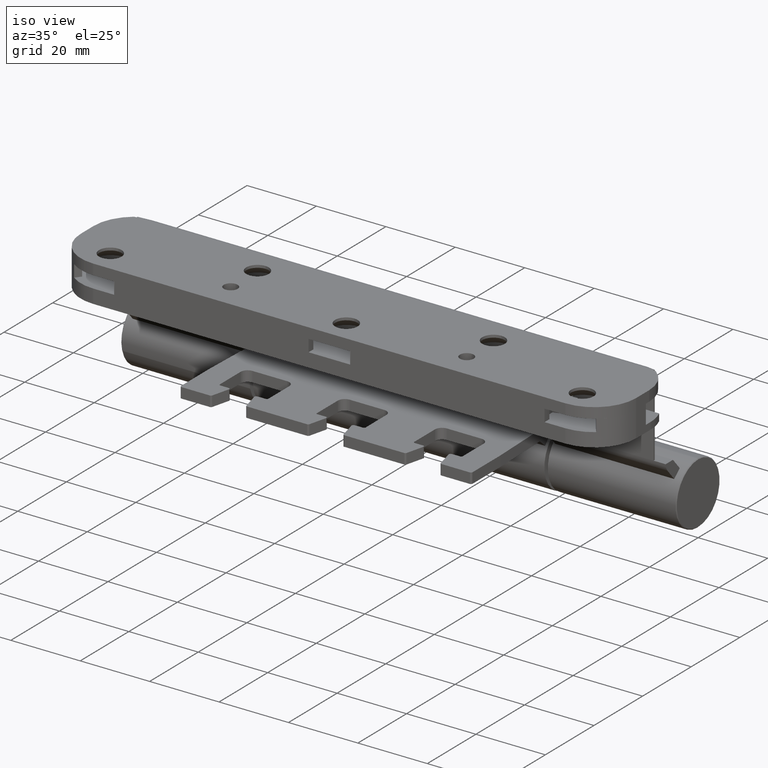
[diagram: clean part render]
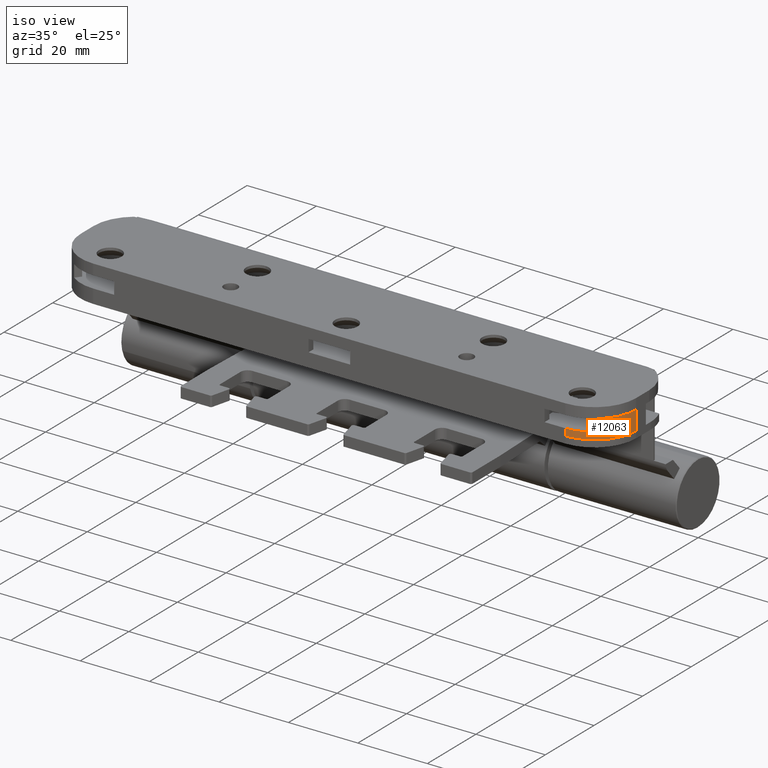
[diagram: same view with one face highlighted and labeled with its STEP entity id]
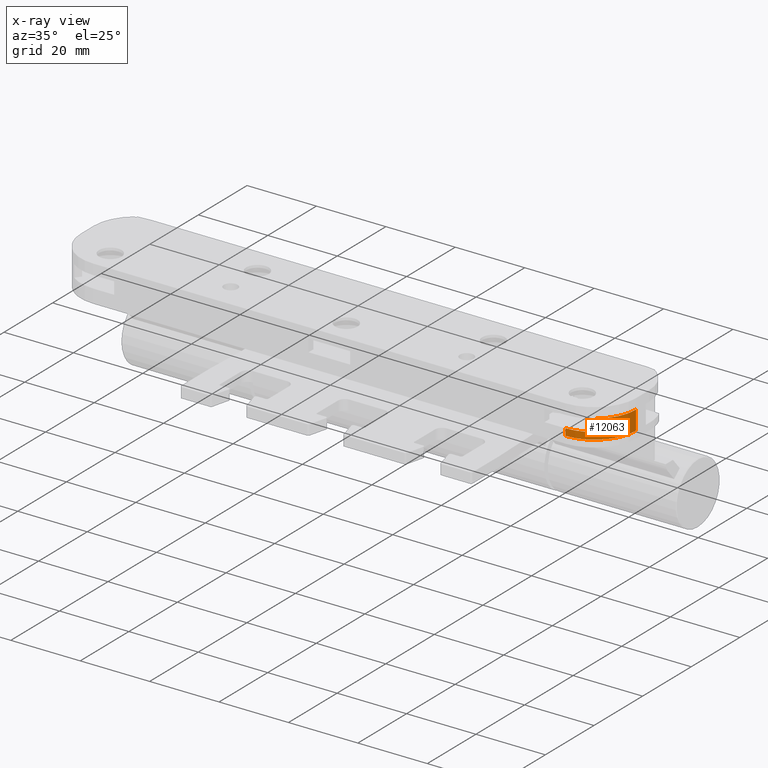
[diagram: x-ray of the same camera — body ghosted, the highlighted face saturated]
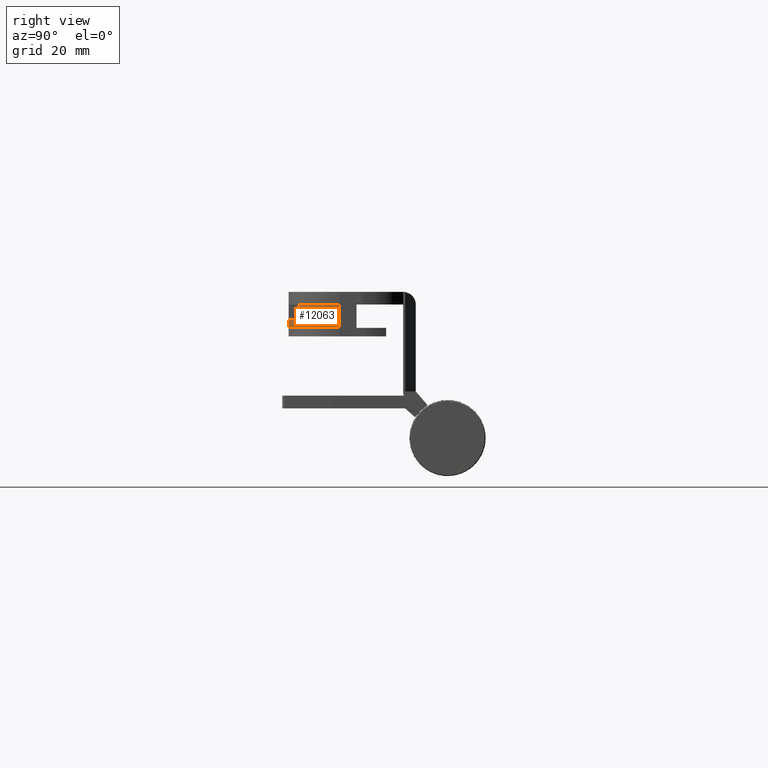
[diagram: same view with one face highlighted and labeled with its STEP entity id]
A machine part, iso view. The second image highlights one B-rep face of the part: STEP entity #12063.
The next image is the same camera in x-ray: the body ghosted, the highlighted face saturated — about 0% of this face is hidden behind the body in this view.
A second angle (right view) of the same face is appended — the face is thin or edge-on in the first view.
In plain terms, the highlighted cylindrical surface (partial cylindrical patch) has radius 12 mm, axis along (0, -0, -1).
Its self-contained STEP definition (entity closure, byte-faithful):
#56 = VECTOR ( 'NONE', #7314, 1000.000000000000000 ) ;
#201 = CARTESIAN_POINT ( 'NONE',  ( 4.000000000000007105, -68.00000000000000000, 1.999999999999922062 ) ) ;
#696 = CARTESIAN_POINT ( 'NONE',  ( 4.000000000000007105, -80.00000000000000000, 1.999999999999914957 ) ) ;
#1927 = DIRECTION ( 'NONE',  ( -1.000000000000000000, 0.000000000000000000, -2.891205793294686708E-16 ) ) ;
#2260 = AXIS2_PLACEMENT_3D ( 'NONE', #4802, #8157, #15163 ) ;
#2679 = EDGE_CURVE ( 'NONE', #15171, #10519, #4637, .T. ) ;
#3939 = EDGE_CURVE ( 'NONE', #4330, #4946, #5031, .T. ) ;
#4330 = VERTEX_POINT ( 'NONE', #11907 ) ;
#4637 = CIRCLE ( 'NONE', #7063, 11.99999999999996625 ) ;
#4802 = CARTESIAN_POINT ( 'NONE',  ( 4.000000000000007105, -68.00000000000000000, 1.999999999999922062 ) ) ;
#4946 = VERTEX_POINT ( 'NONE', #13034 ) ;
#5031 = CIRCLE ( 'NONE', #2260, 11.99999999999996625 ) ;
#5498 = CARTESIAN_POINT ( 'NONE',  ( -7.999999999999992895, -68.00000000000000000, -7.979727989493312634E-14 ) ) ;
#6358 = ORIENTED_EDGE ( 'NONE', *, *, #11897, .T. ) ;
#7063 = AXIS2_PLACEMENT_3D ( 'NONE', #7390, #19055, #8793 ) ;
#7308 = LINE ( 'NONE', #10238, #15389 ) ;
#7314 = DIRECTION ( 'NONE',  ( -2.812673165243434616E-16, -7.216449660063531318E-16, -1.000000000000000000 ) ) ;
#7390 = CARTESIAN_POINT ( 'NONE',  ( 4.000000000000014211, -68.00000000000000000, 5.499999999999911182 ) ) ;
#7804 = CARTESIAN_POINT ( 'NONE',  ( 4.000000000000007105, -80.00000000000000000, -4.510281037539698445E-14 ) ) ;
#8157 = DIRECTION ( 'NONE',  ( 2.812673165243434616E-16, 7.216449660063531318E-16, 1.000000000000000000 ) ) ;
#8479 = VERTEX_POINT ( 'NONE', #7804 ) ;
#8793 = DIRECTION ( 'NONE',  ( -1.000000000000000000, 0.000000000000000000, -2.891205793294686708E-16 ) ) ;
#8890 = DIRECTION ( 'NONE',  ( 2.812673165243434616E-16, 7.216449660063531318E-16, 1.000000000000000000 ) ) ;
#9036 = CARTESIAN_POINT ( 'NONE',  ( 4.000000000000017764, -80.00000000000000000, 5.499999999999841904 ) ) ;
#10006 = ORIENTED_EDGE ( 'NONE', *, *, #16037, .F. ) ;
#10037 = CYLINDRICAL_SURFACE ( 'NONE', #13303, 11.99999999999996625 ) ;
#10238 = CARTESIAN_POINT ( 'NONE',  ( -7.999999999999992895, -68.00000000000000000, 1.999999999999911626 ) ) ;
#10293 = EDGE_LOOP ( 'NONE', ( #10006, #12437, #6358, #19586, #14209, #13745 ) ) ;
#10519 = VERTEX_POINT ( 'NONE', #9036 ) ;
#11560 = VECTOR ( 'NONE', #13848, 1000.000000000000000 ) ;
#11897 = EDGE_CURVE ( 'NONE', #15171, #4946, #15362, .T. ) ;
#11907 = CARTESIAN_POINT ( 'NONE',  ( -7.999999999999992895, -68.00000000000000000, 1.999999999999911626 ) ) ;
#12063 = ADVANCED_FACE ( 'NONE', ( #16322 ), #10037, .T. ) ;
#12240 = CARTESIAN_POINT ( 'NONE',  ( -5.599999999999987210, -75.20000000000000284, 5.499999999999911182 ) ) ;
#12437 = ORIENTED_EDGE ( 'NONE', *, *, #2679, .F. ) ;
#12511 = CARTESIAN_POINT ( 'NONE',  ( -5.599999999999987210, -75.20000000000000284, 5.499999999999911182 ) ) ;
#12534 = EDGE_CURVE ( 'NONE', #4330, #21243, #7308, .T. ) ;
#13034 = CARTESIAN_POINT ( 'NONE',  ( -5.599999999999994316, -75.20000000000000284, 1.999999999999911626 ) ) ;
#13303 = AXIS2_PLACEMENT_3D ( 'NONE', #201, #19991, #1927 ) ;
#13310 = AXIS2_PLACEMENT_3D ( 'NONE', #17128, #8890, #15481 ) ;
#13745 = ORIENTED_EDGE ( 'NONE', *, *, #19058, .T. ) ;
#13848 = DIRECTION ( 'NONE',  ( -2.812673165243434616E-16, -7.216449660063531318E-16, -1.000000000000000000 ) ) ;
#14209 = ORIENTED_EDGE ( 'NONE', *, *, #12534, .T. ) ;
#15163 = DIRECTION ( 'NONE',  ( -1.000000000000000000, 0.000000000000000000, -2.891205793294686708E-16 ) ) ;
#15171 = VERTEX_POINT ( 'NONE', #12511 ) ;
#15362 = LINE ( 'NONE', #12240, #11560 ) ;
#15389 = VECTOR ( 'NONE', #18453, 1000.000000000000000 ) ;
#15481 = DIRECTION ( 'NONE',  ( -1.000000000000000000, 0.000000000000000000, -2.812673165243437081E-16 ) ) ;
#16037 = EDGE_CURVE ( 'NONE', #10519, #8479, #17059, .T. ) ;
#16322 = FACE_OUTER_BOUND ( 'NONE', #10293, .T. ) ;
#17059 = LINE ( 'NONE', #696, #56 ) ;
#17128 = CARTESIAN_POINT ( 'NONE',  ( 4.000000000000007105, -68.00000000000000000, -7.979727989493312634E-14 ) ) ;
#18453 = DIRECTION ( 'NONE',  ( -2.812673165243434616E-16, -7.216449660063531318E-16, -1.000000000000000000 ) ) ;
#18489 = CIRCLE ( 'NONE', #13310, 11.99999999999996625 ) ;
#19055 = DIRECTION ( 'NONE',  ( 2.812673165243434616E-16, 7.216449660063531318E-16, 1.000000000000000000 ) ) ;
#19058 = EDGE_CURVE ( 'NONE', #21243, #8479, #18489, .T. ) ;
#19586 = ORIENTED_EDGE ( 'NONE', *, *, #3939, .F. ) ;
#19991 = DIRECTION ( 'NONE',  ( -2.812673165243434616E-16, -7.216449660063531318E-16, -1.000000000000000000 ) ) ;
#21243 = VERTEX_POINT ( 'NONE', #5498 ) ;